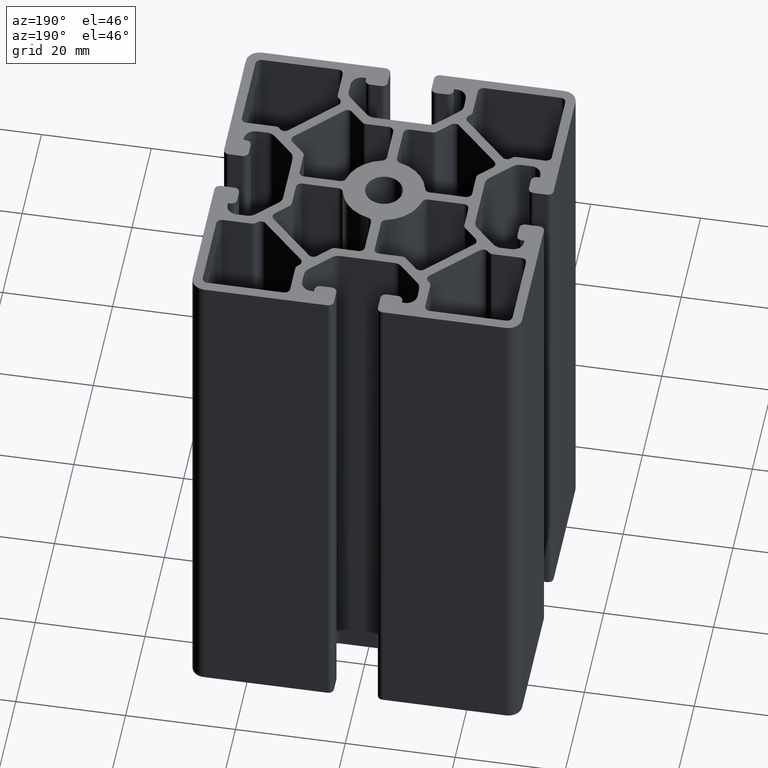
[diagram: clean part render]
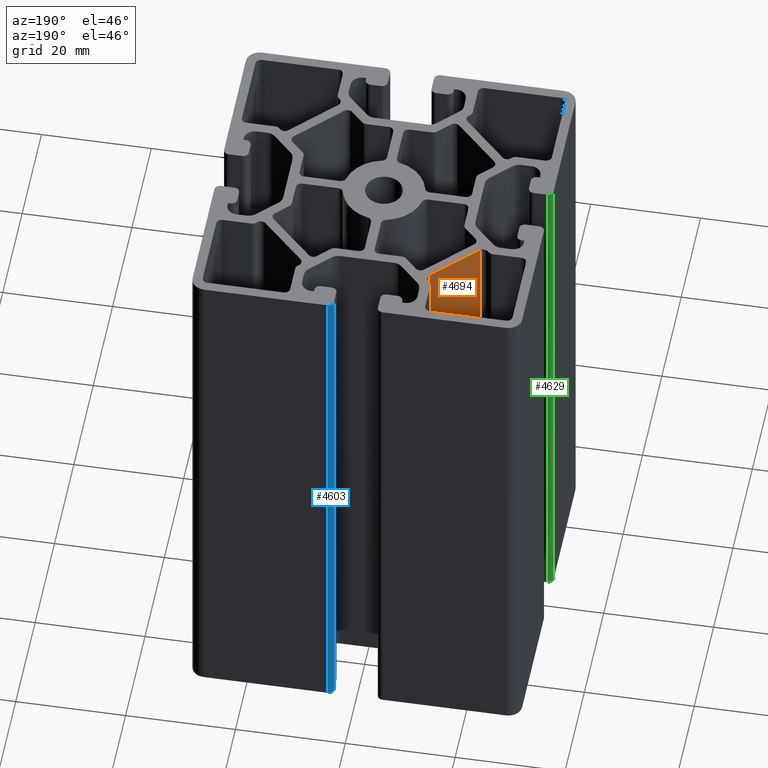
[diagram: same view with three faces highlighted in distinct colors, each labeled with its STEP entity id]
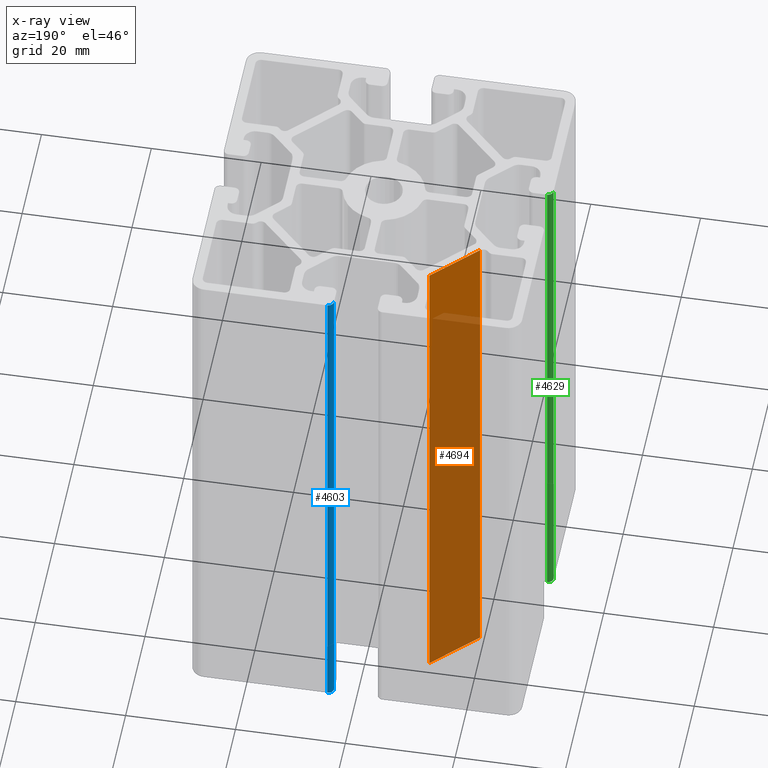
[diagram: x-ray of the same camera — body ghosted, the three highlighted faces saturated]
A machine part, auxiliary view with three faces highlighted in distinct colors.
The next image is the same camera in x-ray (body ghosted, the three faces saturated) — at least one of them is partly hidden behind the body in this view.
Their STEP definitions:

[orange] entity #4694 — the highlighted planar face has unit normal (0.7071, -0.7071, 0).
#138=PLANE('',#5151);
#366=FACE_OUTER_BOUND('',#602,.T.);
#602=EDGE_LOOP('',(#3821,#3822,#3823,#3824));
#1066=LINE('',#7887,#1530);
#1067=LINE('',#7891,#1531);
#1068=LINE('',#7893,#1532);
#1069=LINE('',#7894,#1533);
#1530=VECTOR('',#6479,100.);
#1531=VECTOR('',#6484,11.042135623731);
#1532=VECTOR('',#6485,100.);
#1533=VECTOR('',#6486,11.042135623731);
#2239=VERTEX_POINT('',#7884);
#2240=VERTEX_POINT('',#7886);
#2241=VERTEX_POINT('',#7890);
#2242=VERTEX_POINT('',#7892);
#2913=EDGE_CURVE('',#2240,#2239,#1066,.T.);
#2915=EDGE_CURVE('',#2241,#2239,#1067,.T.);
#2916=EDGE_CURVE('',#2242,#2241,#1068,.T.);
#2917=EDGE_CURVE('',#2240,#2242,#1069,.T.);
#3821=ORIENTED_EDGE('',*,*,#2915,.F.);
#3822=ORIENTED_EDGE('',*,*,#2916,.F.);
#3823=ORIENTED_EDGE('',*,*,#2917,.F.);
#3824=ORIENTED_EDGE('',*,*,#2913,.T.);
#4694=ADVANCED_FACE('',(#366),#138,.F.);
#5151=AXIS2_PLACEMENT_3D('',#7889,#6482,#6483);
#6479=DIRECTION('',(0.,0.,1.));
#6482=DIRECTION('center_axis',(0.707106781186547,-0.707106781186548,0.));
#6483=DIRECTION('ref_axis',(0.707106781186548,0.707106781186547,0.));
#6484=DIRECTION('',(-0.707106781186548,-0.707106781186547,0.));
#6485=DIRECTION('',(0.,0.,1.));
#6486=DIRECTION('',(0.707106781186548,0.707106781186547,0.));
#7884=CARTESIAN_POINT('',(-19.5403428075562,11.7323738292345,100.));
#7886=CARTESIAN_POINT('',(-19.5403428075562,11.7323738292345,0.));
#7887=CARTESIAN_POINT('',(-19.5403428075562,11.7323738292345,0.));
#7889=CARTESIAN_POINT('Origin',(-19.5403428075562,11.7323738292345,0.));
#7890=CARTESIAN_POINT('',(-11.7323738292344,19.5403428075562,100.));
#7891=CARTESIAN_POINT('',(-17.5883505629757,13.6843660738149,100.));
#7892=CARTESIAN_POINT('',(-11.7323738292344,19.5403428075562,0.));
#7893=CARTESIAN_POINT('',(-11.7323738292344,19.5403428075562,0.));
#7894=CARTESIAN_POINT('',(-17.5883505629757,13.6843660738149,0.));

[blue] entity #4603 — the highlighted cylindrical surface (edge-blend (fillet) strip) has radius 1 mm, axis along (0, 0, 1).
#275=FACE_OUTER_BOUND('',#511,.T.);
#511=EDGE_LOOP('',(#3457,#3458,#3459,#3460));
#885=LINE('',#7339,#1349);
#886=LINE('',#7342,#1350);
#1349=VECTOR('',#5934,100.);
#1350=VECTOR('',#5937,100.);
#1695=CIRCLE('',#4967,0.99999800405115);
#1696=CIRCLE('',#4968,0.99999800405115);
#2053=VERTEX_POINT('',#7335);
#2054=VERTEX_POINT('',#7336);
#2055=VERTEX_POINT('',#7338);
#2056=VERTEX_POINT('',#7340);
#2639=EDGE_CURVE('',#2053,#2054,#1695,.T.);
#2640=EDGE_CURVE('',#2053,#2055,#885,.T.);
#2641=EDGE_CURVE('',#2056,#2055,#1696,.T.);
#2642=EDGE_CURVE('',#2056,#2054,#886,.T.);
#3457=ORIENTED_EDGE('',*,*,#2639,.F.);
#3458=ORIENTED_EDGE('',*,*,#2640,.T.);
#3459=ORIENTED_EDGE('',*,*,#2641,.F.);
#3460=ORIENTED_EDGE('',*,*,#2642,.T.);
#4426=CYLINDRICAL_SURFACE('',#4966,0.99999800405115);
#4603=ADVANCED_FACE('',(#275),#4426,.T.);
#4966=AXIS2_PLACEMENT_3D('',#7334,#5930,#5931);
#4967=AXIS2_PLACEMENT_3D('',#7337,#5932,#5933);
#4968=AXIS2_PLACEMENT_3D('',#7341,#5935,#5936);
#5930=DIRECTION('center_axis',(0.,0.,1.));
#5931=DIRECTION('ref_axis',(2.16493921912695E-14,-1.,0.));
#5932=DIRECTION('center_axis',(0.,0.,1.));
#5933=DIRECTION('ref_axis',(2.16493921912695E-14,-1.,0.));
#5934=DIRECTION('',(0.,0.,-1.));
#5935=DIRECTION('center_axis',(0.,0.,-1.));
#5936=DIRECTION('ref_axis',(2.16493921912695E-14,-1.,0.));
#5937=DIRECTION('',(0.,0.,1.));
#7334=CARTESIAN_POINT('Origin',(4.99999800405116,29.0000019959489,0.));
#7335=CARTESIAN_POINT('',(4.99999800405114,30.,100.));
#7336=CARTESIAN_POINT('',(4.00000000000001,29.0000019959489,100.));
#7337=CARTESIAN_POINT('Origin',(4.99999800405116,29.0000019959489,100.));
#7338=CARTESIAN_POINT('',(4.99999800405114,30.,0.));
#7339=CARTESIAN_POINT('',(4.99999800405116,30.,0.));
#7340=CARTESIAN_POINT('',(4.00000000000001,29.0000019959489,0.));
#7341=CARTESIAN_POINT('Origin',(4.99999800405116,29.0000019959489,0.));
#7342=CARTESIAN_POINT('',(4.00000000000001,29.0000019959489,0.));

[green] entity #4629 — the highlighted cylindrical surface (edge-blend (fillet) strip) has radius 1 mm, axis along (0, 0, 1).
#301=FACE_OUTER_BOUND('',#537,.T.);
#537=EDGE_LOOP('',(#3561,#3562,#3563,#3564));
#892=LINE('',#7354,#1356);
#940=LINE('',#7498,#1404);
#1356=VECTOR('',#5947,100.);
#1404=VECTOR('',#6091,100.);
#1719=CIRCLE('',#5017,0.99999800405115);
#1720=CIRCLE('',#5018,0.99999800405115);
#2058=VERTEX_POINT('',#7348);
#2060=VERTEX_POINT('',#7352);
#2107=VERTEX_POINT('',#7494);
#2108=VERTEX_POINT('',#7496);
#2648=EDGE_CURVE('',#2060,#2058,#892,.T.);
#2718=EDGE_CURVE('',#2058,#2107,#1719,.T.);
#2719=EDGE_CURVE('',#2108,#2060,#1720,.T.);
#2720=EDGE_CURVE('',#2107,#2108,#940,.T.);
#3561=ORIENTED_EDGE('',*,*,#2718,.F.);
#3562=ORIENTED_EDGE('',*,*,#2648,.F.);
#3563=ORIENTED_EDGE('',*,*,#2719,.F.);
#3564=ORIENTED_EDGE('',*,*,#2720,.F.);
#4438=CYLINDRICAL_SURFACE('',#5016,0.99999800405115);
#4629=ADVANCED_FACE('',(#301),#4438,.T.);
#5016=AXIS2_PLACEMENT_3D('',#7493,#6085,#6086);
#5017=AXIS2_PLACEMENT_3D('',#7495,#6087,#6088);
#5018=AXIS2_PLACEMENT_3D('',#7497,#6089,#6090);
#5947=DIRECTION('',(0.,0.,1.));
#6085=DIRECTION('center_axis',(0.,0.,1.));
#6086=DIRECTION('ref_axis',(0.,-1.,0.));
#6087=DIRECTION('center_axis',(0.,0.,1.));
#6088=DIRECTION('ref_axis',(0.,-1.,0.));
#6089=DIRECTION('center_axis',(0.,0.,-1.));
#6090=DIRECTION('ref_axis',(0.,-1.,0.));
#6091=DIRECTION('',(0.,0.,-1.));
#7348=CARTESIAN_POINT('',(-29.0000019959489,-4.,100.));
#7352=CARTESIAN_POINT('',(-29.0000019959489,-4.,0.));
#7354=CARTESIAN_POINT('',(-29.0000019959489,-4.,0.));
#7493=CARTESIAN_POINT('Origin',(-29.0000019959489,-4.99999800405115,0.));
#7494=CARTESIAN_POINT('',(-30.,-4.99999800405114,100.));
#7495=CARTESIAN_POINT('Origin',(-29.0000019959489,-4.99999800405115,100.));
#7496=CARTESIAN_POINT('',(-30.,-4.99999800405114,0.));
#7497=CARTESIAN_POINT('Origin',(-29.0000019959489,-4.99999800405115,0.));
#7498=CARTESIAN_POINT('',(-30.,-4.99999800405115,0.));